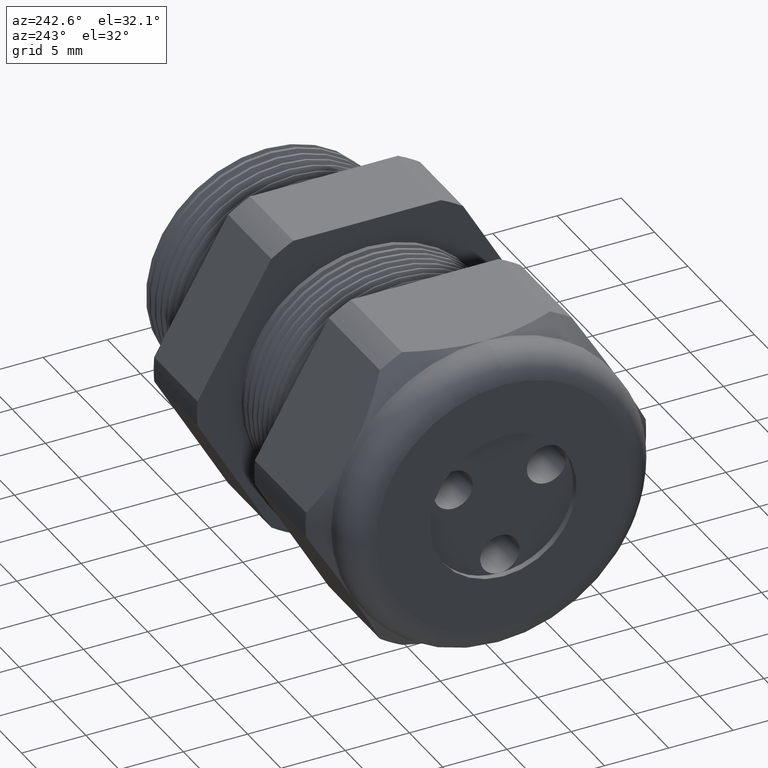
[diagram: clean part render]
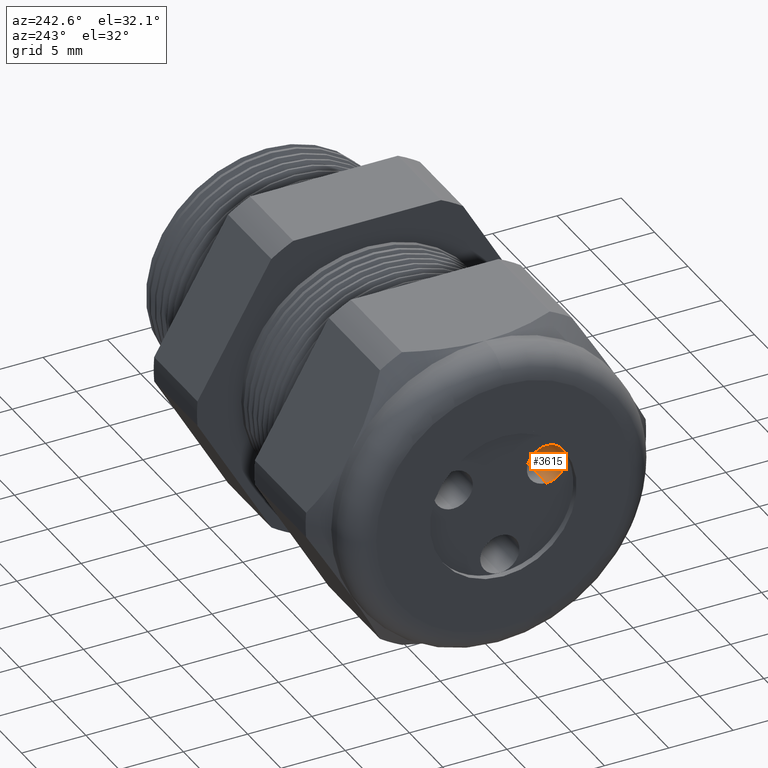
[diagram: same view with one face highlighted and labeled with its STEP entity id]
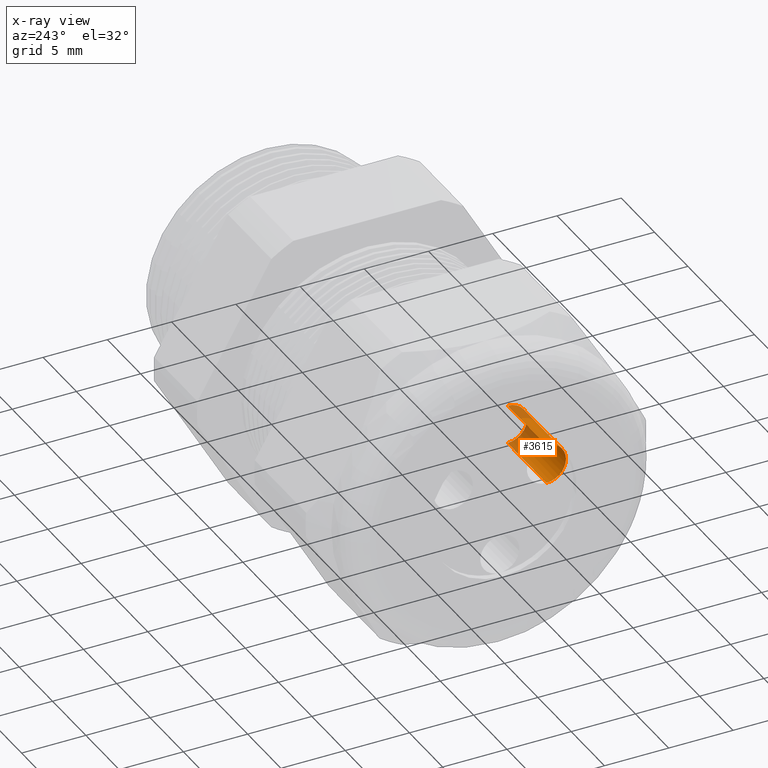
[diagram: x-ray of the same camera — body ghosted, the highlighted face saturated]
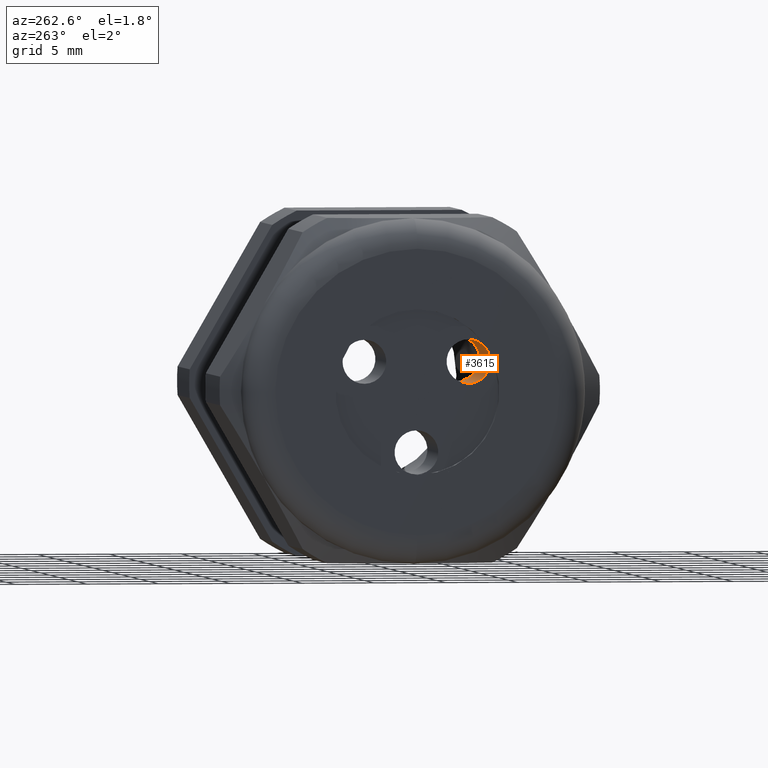
[diagram: same view with one face highlighted and labeled with its STEP entity id]
A machine part, auxiliary view. The second image highlights one B-rep face of the part: STEP entity #3615.
The next image is the same camera in x-ray: the body ghosted, the highlighted face saturated — about 25% of this face is hidden behind the body in this view.
A second angle (auxiliary view) of the same face is appended — the face is thin or edge-on in the first view.
In plain terms, the highlighted cylindrical surface (edge-blend (fillet) strip) has radius 1.524 mm, axis along (-1, 0, 0).
Its self-contained STEP definition (entity closure, byte-faithful):
#61 = EDGE_CURVE ( 'NONE', #82, #63, #341, .T. ) ;
#62 = ORIENTED_EDGE ( 'NONE', *, *, #61, .F. ) ;
#63 = VERTEX_POINT ( 'NONE', #333 ) ;
#65 = VERTEX_POINT ( 'NONE', #332 ) ;
#66 = ORIENTED_EDGE ( 'NONE', *, *, #67, .T. ) ;
#67 = EDGE_CURVE ( 'NONE', #65, #63, #393, .T. ) ;
#82 = VERTEX_POINT ( 'NONE', #363 ) ;
#87 = VERTEX_POINT ( 'NONE', #413 ) ;
#88 = ORIENTED_EDGE ( 'NONE', *, *, #96, .T. ) ;
#96 = EDGE_CURVE ( 'NONE', #87, #65, #394, .T. ) ;
#115 = EDGE_CURVE ( 'NONE', #87, #82, #429, .T. ) ;
#117 = ORIENTED_EDGE ( 'NONE', *, *, #115, .F. ) ;
#331 = CARTESIAN_POINT ( 'NONE',  ( -1.350000000000000100, -0.1426863455275237400, 0.08238000000000067500 ) ) ;
#332 = CARTESIAN_POINT ( 'NONE',  ( -1.350000000000000100, -0.1426863455275237400, 0.02238000000000066300 ) ) ;
#333 = CARTESIAN_POINT ( 'NONE',  ( -1.350000000000000100, -0.1426863455275237400, 0.1423800000000007000 ) ) ;
#334 = DIRECTION ( 'NONE',  ( -1.000000000000000000, 0.0000000000000000000, 0.0000000000000000000 ) ) ;
#335 = VECTOR ( 'NONE', #334, 39.37007874015748100 ) ;
#336 = CARTESIAN_POINT ( 'NONE',  ( -1.120000000000000100, -0.1426863455275237400, 0.1423800000000007000 ) ) ;
#341 = LINE ( 'NONE', #336, #335 ) ;
#363 = CARTESIAN_POINT ( 'NONE',  ( -1.120000000000000100, -0.1426863455275237400, 0.1423800000000007000 ) ) ;
#390 = DIRECTION ( 'NONE',  ( 0.0000000000000000000, 0.8660254037844362700, -0.5000000000000041100 ) ) ;
#391 = DIRECTION ( 'NONE',  ( -1.000000000000000000, 0.0000000000000000000, 0.0000000000000000000 ) ) ;
#392 = AXIS2_PLACEMENT_3D ( 'NONE', #331, #391, #390 ) ;
#393 = CIRCLE ( 'NONE', #392, 0.06000000000000002600 ) ;
#394 = LINE ( 'NONE', #455, #454 ) ;
#413 = CARTESIAN_POINT ( 'NONE',  ( -1.120000000000000100, -0.1426863455275237400, 0.02238000000000066300 ) ) ;
#425 = DIRECTION ( 'NONE',  ( 0.0000000000000000000, 0.8660254037844362700, -0.5000000000000041100 ) ) ;
#426 = DIRECTION ( 'NONE',  ( -1.000000000000000000, 0.0000000000000000000, 0.0000000000000000000 ) ) ;
#427 = CARTESIAN_POINT ( 'NONE',  ( -1.120000000000000100, -0.1426863455275237400, 0.08238000000000067500 ) ) ;
#428 = AXIS2_PLACEMENT_3D ( 'NONE', #427, #426, #425 ) ;
#429 = CIRCLE ( 'NONE', #428, 0.06000000000000002600 ) ;
#453 = DIRECTION ( 'NONE',  ( -1.000000000000000000, 0.0000000000000000000, 0.0000000000000000000 ) ) ;
#454 = VECTOR ( 'NONE', #453, 39.37007874015748100 ) ;
#455 = CARTESIAN_POINT ( 'NONE',  ( -1.120000000000000100, -0.1426863455275237400, 0.02238000000000066300 ) ) ;
#942 = DIRECTION ( 'NONE',  ( 0.0000000000000000000, 0.0000000000000000000, 1.000000000000000000 ) ) ;
#943 = DIRECTION ( 'NONE',  ( -1.000000000000000000, 0.0000000000000000000, 0.0000000000000000000 ) ) ;
#944 = CARTESIAN_POINT ( 'NONE',  ( -1.120000000000000100, -0.1426863455275237400, 0.08238000000000067500 ) ) ;
#945 = AXIS2_PLACEMENT_3D ( 'NONE', #944, #943, #942 ) ;
#947 = CYLINDRICAL_SURFACE ( 'NONE', #945, 0.06000000000000001200 ) ;
#948 = FACE_OUTER_BOUND ( 'NONE', #3616, .T. ) ;
#3615 = ADVANCED_FACE ( 'NONE', ( #948 ), #947, .F. ) ;
#3616 = EDGE_LOOP ( 'NONE', ( #117, #88, #66, #62 ) ) ;